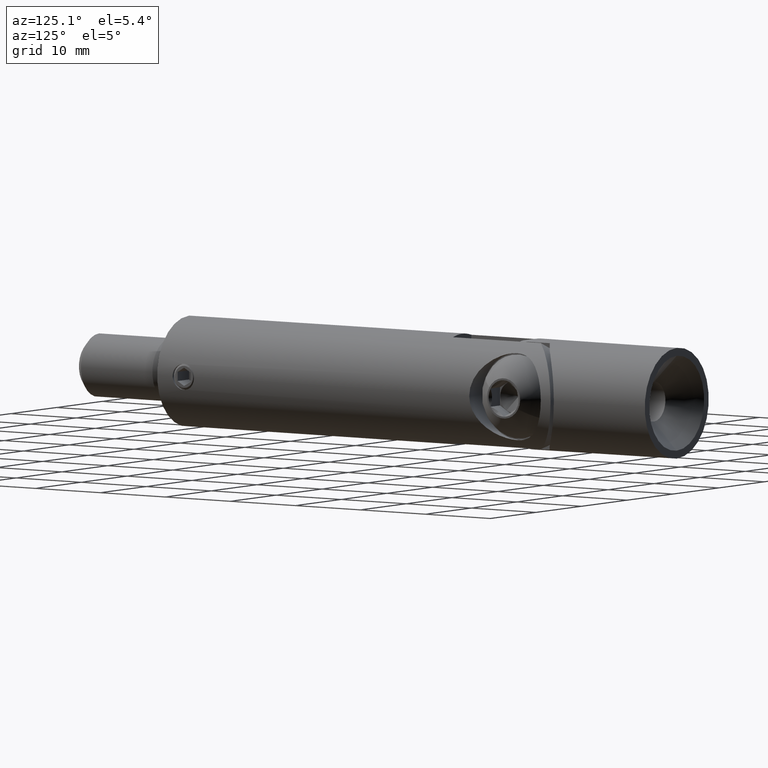
[diagram: clean part render]
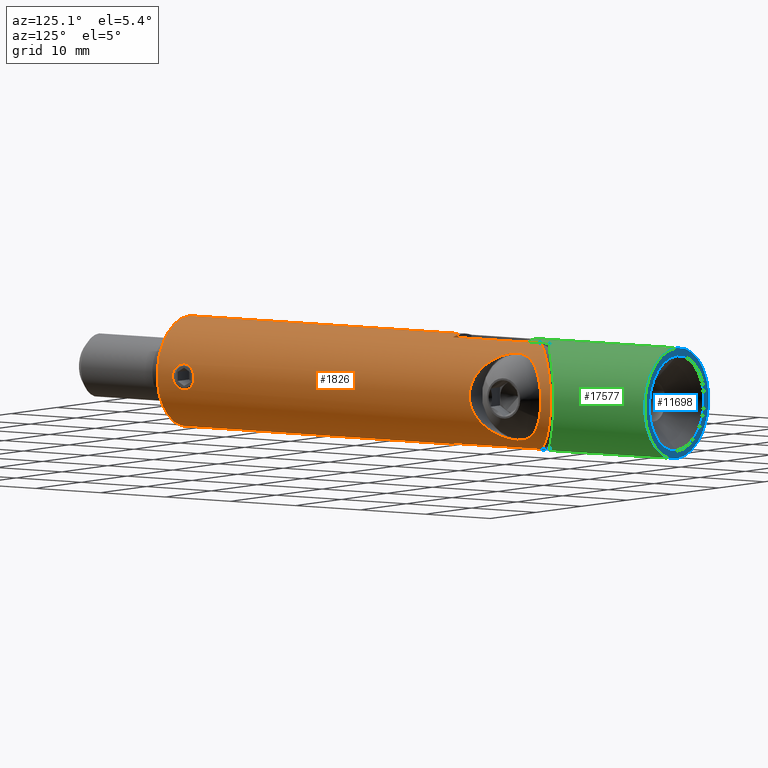
[diagram: same view with three faces highlighted in distinct colors, each labeled with its STEP entity id]
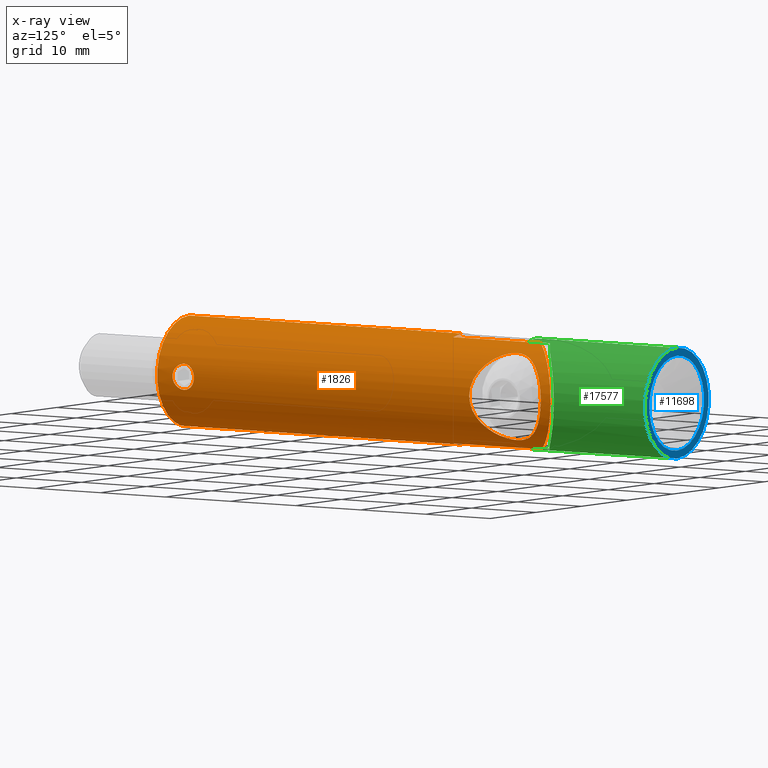
[diagram: x-ray of the same camera — body ghosted, the three highlighted faces saturated]
A machine part, auxiliary view with three faces highlighted in distinct colors.
The next image is the same camera in x-ray (body ghosted, the three faces saturated) — at least one of them is partly hidden behind the body in this view.
Their STEP definitions:

[orange] entity #1826 — the highlighted cylindrical surface (partial cylindrical patch) has radius 7 mm, axis along (-0, -1, -0).
#7 = AXIS2_PLACEMENT_3D ( 'NONE', #11309, #6150, #3352 ) ;
#18 = CARTESIAN_POINT ( 'NONE',  ( 10.18181818181817300, 63.68181818181817300, 4.268857047954133700 ) ) ;
#187 = DIRECTION ( 'NONE',  ( -0.0000000000000000000, -1.000000000000000000, -0.0000000000000000000 ) ) ;
#221 = CARTESIAN_POINT ( 'NONE',  ( 4.564636563695207100, 52.01323757000891100, 5.308317265926602200 ) ) ;
#302 = CARTESIAN_POINT ( 'NONE',  ( 6.876271399908920200, 5.006718435620928000, -1.311723865839887100 ) ) ;
#347 = CARTESIAN_POINT ( 'NONE',  ( 4.981418642730962400, 51.02052013683179900, -4.921893279491678500 ) ) ;
#415 = CARTESIAN_POINT ( 'NONE',  ( 6.118800279731655900, 49.17465190330179300, 3.415223899190800600 ) ) ;
#419 = CARTESIAN_POINT ( 'NONE',  ( 4.330127018922195400, 53.50000000000000000, -5.499999999999998200 ) ) ;
#427 = EDGE_CURVE ( 'NONE', #4382, #3183, #1918, .T. ) ;
#468 = CARTESIAN_POINT ( 'NONE',  ( 5.142119631477074300, 50.71686793326573900, -4.756356380513759400 ) ) ;
#533 = CARTESIAN_POINT ( 'NONE',  ( 6.542824856651344100, 48.59413685171208600, -2.513412350006165100 ) ) ;
#550 = CARTESIAN_POINT ( 'NONE',  ( 0.0000000000000000000, 0.0000000000000000000, -6.999999999999990200 ) ) ;
#591 = CARTESIAN_POINT ( 'NONE',  ( 4.343239327089206000, 53.11481009218788800, -5.489741830845622900 ) ) ;
#619 = CARTESIAN_POINT ( 'NONE',  ( 6.802756794123983900, 4.000000000000000000, 1.649999999999999000 ) ) ;
#658 = CARTESIAN_POINT ( 'NONE',  ( 6.537336558496925900, 58.39797312861956900, 2.508375037338220100 ) ) ;
#675 = CARTESIAN_POINT ( 'NONE',  ( 6.841267040103099700, 3.268413706700694600, 1.482851335314281100 ) ) ;
#780 = CARTESIAN_POINT ( 'NONE',  ( 4.343124385056432500, 53.88373190121762900, 5.489831873693367100 ) ) ;
#896 = VERTEX_POINT ( 'NONE', #9023 ) ;
#933 = CARTESIAN_POINT ( 'NONE',  ( 6.850682986879225400, 3.167283776696237400, -1.440594414308846900 ) ) ;
#983 = DIRECTION ( 'NONE',  ( -0.0000000000000000000, 1.000000000000000000, -0.0000000000000000000 ) ) ;
#1234 = CARTESIAN_POINT ( 'NONE',  ( 2.000000000000000900, 55.50000000000001400, 6.708203932499365000 ) ) ;
#1516 = CIRCLE ( 'NONE', #10191, 7.000000000000000000 ) ;
#1621 = CARTESIAN_POINT ( 'NONE',  ( 6.987640299487805100, 5.596884732902058300, 0.4291110676307161600 ) ) ;
#1682 = CARTESIAN_POINT ( 'NONE',  ( 6.805405047654836000, 4.217457718633582400, 1.639188448635536100 ) ) ;
#1704 = VERTEX_POINT ( 'NONE', #13443 ) ;
#1718 = CARTESIAN_POINT ( 'NONE',  ( 4.698041462989342800, 51.67038258904467800, -5.189910143153373000 ) ) ;
#1737 = CARTESIAN_POINT ( 'NONE',  ( 2.000000000000015500, 0.0000000000000000000, 6.708203932499365000 ) ) ;
#1798 = CARTESIAN_POINT ( 'NONE',  ( 6.815497306745561100, 4.429829658124429400, 1.596706953241620500 ) ) ;
#1826 = ADVANCED_FACE ( 'NONE', ( #11631, #2708, #13779 ), #13361, .T. ) ;
#1855 = CARTESIAN_POINT ( 'NONE',  ( 5.141011918187207800, 56.28095319619828300, -4.757435948329096200 ) ) ;
#1863 = CARTESIAN_POINT ( 'NONE',  ( 6.852344388496462100, 4.827645613757879600, -1.431469261584169100 ) ) ;
#1875 = AXIS2_PLACEMENT_3D ( 'NONE', #8445, #187, #3050 ) ;
#1907 = CARTESIAN_POINT ( 'NONE',  ( 4.519484047027379600, 52.19372721919619800, -5.345817098434363100 ) ) ;
#1918 = LINE ( 'NONE', #2012, #17281 ) ;
#1965 = CARTESIAN_POINT ( 'NONE',  ( 4.392494118280227500, 52.73931084414697100, -5.450411786515233300 ) ) ;
#1990 = CARTESIAN_POINT ( 'NONE',  ( 6.962150194191759000, 2.518213385095678300, 0.7338959035406256200 ) ) ;
#2012 = CARTESIAN_POINT ( 'NONE',  ( 2.000000000000015500, 0.0000000000000000000, -6.708203932499365000 ) ) ;
#2133 = DIRECTION ( 'NONE',  ( -0.0000000000000000000, -1.000000000000000000, -0.0000000000000000000 ) ) ;
#2225 = CARTESIAN_POINT ( 'NONE',  ( 6.802756794123984800, 3.890593403677181900, -1.649999999999999000 ) ) ;
#2356 = CARTESIAN_POINT ( 'NONE',  ( 6.987744406976830200, 2.402661367526322400, -0.4273928636816797200 ) ) ;
#2509 = VECTOR ( 'NONE', #12768, 1000.000000000000000 ) ;
#2687 = VERTEX_POINT ( 'NONE', #8346 ) ;
#2708 = FACE_BOUND ( 'NONE', #11019, .T. ) ;
#2866 = CARTESIAN_POINT ( 'NONE',  ( 8.572527594031473200E-016, 42.00000000000000000, 7.000000000000000000 ) ) ;
#2881 = VERTEX_POINT ( 'NONE', #12118 ) ;
#2922 = LINE ( 'NONE', #7304, #2509 ) ;
#2986 = CARTESIAN_POINT ( 'NONE',  ( 6.989344852189536700, 5.606209315279931700, -0.4344579339126458700 ) ) ;
#3050 = DIRECTION ( 'NONE',  ( 0.0000000000000000000, 0.0000000000000000000, -1.000000000000000000 ) ) ;
#3095 = CARTESIAN_POINT ( 'NONE',  ( 5.140929530618918400, 50.71925362934015900, 4.757480964554998700 ) ) ;
#3183 = VERTEX_POINT ( 'NONE', #16457 ) ;
#3215 = CARTESIAN_POINT ( 'NONE',  ( 6.758679285805232700, 48.30973647135601800, 1.856318990163557100 ) ) ;
#3225 = CARTESIAN_POINT ( 'NONE',  ( 6.876854958624238500, 58.84244529080081100, -1.320316435885758900 ) ) ;
#3275 = CARTESIAN_POINT ( 'NONE',  ( 4.330127018922195400, 53.50000000000000000, -5.499999999999998200 ) ) ;
#3283 = CARTESIAN_POINT ( 'NONE',  ( 6.962684004290618000, 58.95244074703001000, 0.7460508896046672600 ) ) ;
#3352 = DIRECTION ( 'NONE',  ( 0.0000000000000000000, 0.0000000000000000000, -1.000000000000000000 ) ) ;
#3407 = CARTESIAN_POINT ( 'NONE',  ( 5.142769192629566900, 56.28424948931279200, 4.755596340490513700 ) ) ;
#3425 = DIRECTION ( 'NONE',  ( 0.0000000000000000000, 0.0000000000000000000, -1.000000000000000000 ) ) ;
#3481 = CARTESIAN_POINT ( 'NONE',  ( 6.852391282326573600, 3.171960051553060800, 1.431248323626336200 ) ) ;
#3603 = ORIENTED_EDGE ( 'NONE', *, *, #16921, .F. ) ;
#3660 = B_SPLINE_CURVE_WITH_KNOTS ( 'NONE', 3,
 ( #619, #8952, #14390, #675, #3481, #6096, #15777, #7484, #17153, #8889, #1990, #17524, #7848, #9197, #5004, #2356, #14812, #10700, #13378, #3727, #933, #9258, #16321, #17706, #2225, #12191 ),
 .UNSPECIFIED., .F., .F.,
 ( 4, 2, 2, 2, 2, 2, 2, 2, 2, 2, 2, 2, 4 ),
 ( 0.005176886689741951400, 0.005823823536783965000, 0.006147291960304972700, 0.006470760383825980400, 0.006794228807346988100, 0.007117697230867995800, 0.007764634077910009500, 0.008088102501431018000, 0.008411570924952024900, 0.009058507771994038500, 0.009705444619036055600, 0.01002891304255706200, 0.01035238146607806900 ),
 .UNSPECIFIED. ) ;
#3727 = CARTESIAN_POINT ( 'NONE',  ( 6.876582889404570400, 2.984048697640952200, -1.317661791604446200 ) ) ;
#3741 = EDGE_CURVE ( 'NONE', #3183, #10319, #9549, .T. ) ;
#4382 = VERTEX_POINT ( 'NONE', #7752 ) ;
#4507 = CARTESIAN_POINT ( 'NONE',  ( 6.962792258086790500, 48.04742099311989300, -0.7452126322119035900 ) ) ;
#4526 = CARTESIAN_POINT ( 'NONE',  ( 6.876317534601179600, 5.007003973246006500, 1.311474037834923400 ) ) ;
#4587 = CARTESIAN_POINT ( 'NONE',  ( 6.927901957111284800, 5.319501220172840700, 1.014025552795952300 ) ) ;
#4683 = CARTESIAN_POINT ( 'NONE',  ( 5.965203083675139500, 49.39307486869241600, -3.674339829185508900 ) ) ;
#4692 = CARTESIAN_POINT ( 'NONE',  ( 5.469042501406028700, 56.84874947087537600, -4.376388289812887900 ) ) ;
#4870 = EDGE_CURVE ( 'NONE', #17653, #10899, #13682, .T. ) ;
#5004 = CARTESIAN_POINT ( 'NONE',  ( 6.997481569094726500, 2.360589398784641400, -0.2156113339822405600 ) ) ;
#5049 = CARTESIAN_POINT ( 'NONE',  ( 4.330127018922191000, 53.69125714729352700, 5.500000000000001800 ) ) ;
#5562 = LINE ( 'NONE', #7286, #12721 ) ;
#5710 = CARTESIAN_POINT ( 'NONE',  ( 4.330127018922306400, 53.49999999999988600, 5.500000000000002700 ) ) ;
#5754 = LINE ( 'NONE', #1737, #17220 ) ;
#5791 = CARTESIAN_POINT ( 'NONE',  ( 6.889101569378518700, 5.089912803340894200, 1.243502273441356100 ) ) ;
#5850 = CARTESIAN_POINT ( 'NONE',  ( 6.997434424159480100, 5.639210912470325400, 0.2171744528646556400 ) ) ;
#5887 = CARTESIAN_POINT ( 'NONE',  ( 4.574836818815185800, 52.01506289652022000, -5.298832792529525500 ) ) ;
#5952 = DIRECTION ( 'NONE',  ( -0.0000000000000000000, -1.000000000000000000, -0.0000000000000000000 ) ) ;
#5960 = CARTESIAN_POINT ( 'NONE',  ( 5.635442459809194600, 57.11127971664019800, -4.162378433175481600 ) ) ;
#5967 = CARTESIAN_POINT ( 'NONE',  ( 6.927758365672918500, 5.318582777858759800, -1.014801964244753400 ) ) ;
#6021 = CARTESIAN_POINT ( 'NONE',  ( 6.598055118728648700, 58.47860885108372000, 2.344532291128746100 ) ) ;
#6083 = CARTESIAN_POINT ( 'NONE',  ( 4.980657885628821700, 55.97798577821352200, 4.922663588529412800 ) ) ;
#6096 = CARTESIAN_POINT ( 'NONE',  ( 6.876345659478968000, 2.992769391472811500, 1.311338408403091900 ) ) ;
#6143 = CARTESIAN_POINT ( 'NONE',  ( 4.381899820940813800, 54.25820959508826700, -5.460128169591876600 ) ) ;
#6150 = DIRECTION ( 'NONE',  ( -0.0000000000000000000, 1.000000000000000000, -0.0000000000000000000 ) ) ;
#6195 = CARTESIAN_POINT ( 'NONE',  ( 5.959526870003809800, 57.59866929481923800, -3.683428487766160900 ) ) ;
#7104 = CARTESIAN_POINT ( 'NONE',  ( 4.381711536334037800, 52.74240409699324800, 5.460287828193204800 ) ) ;
#7283 = CARTESIAN_POINT ( 'NONE',  ( 4.330127018922196300, 53.30757085261022600, -5.499999999999996400 ) ) ;
#7286 = CARTESIAN_POINT ( 'NONE',  ( 8.572527594031473200E-016, 0.0000000000000000000, 7.000000000000000000 ) ) ;
#7304 = CARTESIAN_POINT ( 'NONE',  ( 0.0000000000000000000, 0.0000000000000000000, -7.000000000000000000 ) ) ;
#7359 = CARTESIAN_POINT ( 'NONE',  ( 6.980466204550488400, 5.565583584430961600, 0.5321667002283918500 ) ) ;
#7397 = CARTESIAN_POINT ( 'NONE',  ( 6.763366467986198700, 48.30364915491699700, -1.839204383883986400 ) ) ;
#7405 = CARTESIAN_POINT ( 'NONE',  ( 6.118761982340818600, 57.82530646751458600, -3.415390690307233100 ) ) ;
#7466 = CARTESIAN_POINT ( 'NONE',  ( 5.639211792954381700, 57.11718560579952000, 4.157399225194837700 ) ) ;
#7484 = CARTESIAN_POINT ( 'NONE',  ( 6.914837155602877600, 2.757784916843634800, 1.091316214963677300 ) ) ;
#7523 = CARTESIAN_POINT ( 'NONE',  ( 6.846321943609229500, 48.19674714074443500, 1.505326204670953900 ) ) ;
#7524 = EDGE_CURVE ( 'NONE', #896, #4382, #17199, .T. ) ;
#7530 = CARTESIAN_POINT ( 'NONE',  ( 7.000211044381926800, 59.00026860204964400, 0.1814224726587949900 ) ) ;
#7549 = DIRECTION ( 'NONE',  ( -0.0000000000000000000, -1.000000000000000000, -0.0000000000000000000 ) ) ;
#7588 = CARTESIAN_POINT ( 'NONE',  ( 5.964810482598363000, 57.60637140969041800, 3.675012091154409500 ) ) ;
#7717 = CARTESIAN_POINT ( 'NONE',  ( 4.428083658012213600, 54.44272206825868900, 5.421769410065435200 ) ) ;
#7752 = CARTESIAN_POINT ( 'NONE',  ( 2.000000000000000900, 55.50000000000001400, -6.708203932499365000 ) ) ;
#7848 = CARTESIAN_POINT ( 'NONE',  ( 6.999981427835531500, 2.350078791005636000, 0.2183066005469422000 ) ) ;
#7997 = ORIENTED_EDGE ( 'NONE', *, *, #4870, .F. ) ;
#8346 = CARTESIAN_POINT ( 'NONE',  ( 8.572527594031461400E-016, 0.0000000000000000000, 6.999999999999990200 ) ) ;
#8444 = CARTESIAN_POINT ( 'NONE',  ( 6.802756794123983900, 4.109436020467696500, -1.649999999999998600 ) ) ;
#8445 = CARTESIAN_POINT ( 'NONE',  ( 0.0000000000000000000, 0.0000000000000000000, 0.0000000000000000000 ) ) ;
#8634 = CARTESIAN_POINT ( 'NONE',  ( 6.802756794123982200, 4.107906639725028300, 1.649999999999998800 ) ) ;
#8677 = CARTESIAN_POINT ( 'NONE',  ( 5.959888016800598500, 49.40076994837417600, 3.682938467230362900 ) ) ;
#8692 = CARTESIAN_POINT ( 'NONE',  ( 6.841302398867267000, 4.731955566503201800, 1.482691859907623500 ) ) ;
#8746 = CARTESIAN_POINT ( 'NONE',  ( 6.536999315311256900, 58.39809581122224100, -2.528186749634238500 ) ) ;
#8755 = CARTESIAN_POINT ( 'NONE',  ( 6.815413473074264600, 4.428380775582283500, -1.597062494607958600 ) ) ;
#8809 = CARTESIAN_POINT ( 'NONE',  ( 5.472077794092315100, 56.85374501634769500, 4.372657788776559000 ) ) ;
#8872 = EDGE_LOOP ( 'NONE', ( #12629, #7997 ) ) ;
#8876 = CARTESIAN_POINT ( 'NONE',  ( 4.574617726922028300, 54.98421044356374700, 5.299017119938606700 ) ) ;
#8889 = CARTESIAN_POINT ( 'NONE',  ( 6.951381027760717800, 2.569049517665056300, 0.8284870251625875400 ) ) ;
#8909 = ORIENTED_EDGE ( 'NONE', *, *, #3741, .F. ) ;
#8935 = CARTESIAN_POINT ( 'NONE',  ( 6.967224025703915300, 58.95843941775717000, -0.7715360179236543400 ) ) ;
#8952 = CARTESIAN_POINT ( 'NONE',  ( 6.802756794123984800, 3.784244746428203400, 1.649999999999999200 ) ) ;
#9023 = CARTESIAN_POINT ( 'NONE',  ( 2.000000000000000900, 55.50000000000001400, 6.708203932499365000 ) ) ;
#9197 = CARTESIAN_POINT ( 'NONE',  ( 7.000009247981115100, 2.349960766138304600, -0.1082588040302215600 ) ) ;
#9247 = CARTESIAN_POINT ( 'NONE',  ( 0.0000000000000000000, 42.00000000000000000, 0.0000000000000000000 ) ) ;
#9258 = CARTESIAN_POINT ( 'NONE',  ( 6.823044746341871300, 3.465019307785227800, -1.564561536894661000 ) ) ;
#9410 = ORIENTED_EDGE ( 'NONE', *, *, #17543, .F. ) ;
#9481 = VERTEX_POINT ( 'NONE', #11307 ) ;
#9549 = CIRCLE ( 'NONE', #9878, 7.000000000000000000 ) ;
#9573 = CARTESIAN_POINT ( 'NONE',  ( 4.330127018922195400, 53.50000000000000000, -5.499999999999998200 ) ) ;
#9609 = CARTESIAN_POINT ( 'NONE',  ( 10.18181818181817300, 63.68181818181817300, -4.268857047954133700 ) ) ;
#9764 = CARTESIAN_POINT ( 'NONE',  ( 6.802756794123982200, 4.000000000000000000, -1.649999999999998600 ) ) ;
#9878 = AXIS2_PLACEMENT_3D ( 'NONE', #9247, #983, #14801 ) ;
#9975 = CARTESIAN_POINT ( 'NONE',  ( 6.937002934152253000, 48.08035043643489800, 0.9552607372160938400 ) ) ;
#10039 = CARTESIAN_POINT ( 'NONE',  ( 5.634418784869821700, 49.89027745018502500, 4.163847485549226200 ) ) ;
#10051 = CARTESIAN_POINT ( 'NONE',  ( 6.407049158269247300, 58.22433135563785800, -2.837932847601929900 ) ) ;
#10120 = CARTESIAN_POINT ( 'NONE',  ( 6.762739449558572400, 58.69552729103082800, 1.841197217326563600 ) ) ;
#10125 = CARTESIAN_POINT ( 'NONE',  ( 6.953318440557151100, 5.441389689659185800, -0.8312988772853389100 ) ) ;
#10166 = CARTESIAN_POINT ( 'NONE',  ( 5.467921536950592000, 50.15312685131381400, 4.377740927995245300 ) ) ;
#10176 = CARTESIAN_POINT ( 'NONE',  ( 6.992752333776262000, 58.99078562300535100, 0.3701017048744608100 ) ) ;
#10191 = AXIS2_PLACEMENT_3D ( 'NONE', #15839, #7549, #3425 ) ;
#10230 = CARTESIAN_POINT ( 'NONE',  ( 6.124201327122397000, 49.16700978500747300, -3.405732803645709500 ) ) ;
#10282 = CIRCLE ( 'NONE', #7, 7.000000000000000000 ) ;
#10301 = CARTESIAN_POINT ( 'NONE',  ( 4.573796947574691400, 54.98163716731787800, -5.299720030575783400 ) ) ;
#10319 = VERTEX_POINT ( 'NONE', #13300 ) ;
#10600 = EDGE_LOOP ( 'NONE', ( #14432, #15292, #3603, #13950, #8909, #15245, #15488, #16075 ) ) ;
#10700 = CARTESIAN_POINT ( 'NONE',  ( 6.953330894584001800, 2.558539875664909600, -0.8313609373707684400 ) ) ;
#10899 = VERTEX_POINT ( 'NONE', #9573 ) ;
#11019 = EDGE_LOOP ( 'NONE', ( #9410, #14651 ) ) ;
#11307 = CARTESIAN_POINT ( 'NONE',  ( 6.802756794123982200, 4.000000000000000000, -1.649999999999998600 ) ) ;
#11309 = CARTESIAN_POINT ( 'NONE',  ( 0.0000000000000000000, 42.00000000000000000, 0.0000000000000000000 ) ) ;
#11312 = CARTESIAN_POINT ( 'NONE',  ( 6.852464869255958200, 4.828606631554865900, 1.430885112156660100 ) ) ;
#11486 = CARTESIAN_POINT ( 'NONE',  ( 4.765770817492353700, 51.50415590306033000, -5.128091243567287600 ) ) ;
#11505 = CARTESIAN_POINT ( 'NONE',  ( 6.889311268357991100, 5.091187836512602000, -1.242298272405677000 ) ) ;
#11556 = CARTESIAN_POINT ( 'NONE',  ( 6.839840961106306200, 58.79478193106691500, -1.499845889937603500 ) ) ;
#11564 = CARTESIAN_POINT ( 'NONE',  ( 7.000010220354675500, 5.650043359083760200, 0.1073881788798277300 ) ) ;
#11610 = CARTESIAN_POINT ( 'NONE',  ( 6.850351886073434000, 48.19155186534379700, -1.487261485796818100 ) ) ;
#11631 = FACE_BOUND ( 'NONE', #8872, .T. ) ;
#11748 = CARTESIAN_POINT ( 'NONE',  ( 6.123759610155000900, 57.83236171993800000, 3.406480096426387500 ) ) ;
#12118 = CARTESIAN_POINT ( 'NONE',  ( 6.802756794123983900, 4.000000000000000000, 1.649999999999999000 ) ) ;
#12191 = CARTESIAN_POINT ( 'NONE',  ( 6.802756794123982200, 4.000000000000000000, -1.649999999999998600 ) ) ;
#12315 = CARTESIAN_POINT ( 'NONE',  ( 2.000000000000000900, 55.50000000000001400, -6.708203932499365000 ) ) ;
#12561 = B_SPLINE_CURVE_WITH_KNOTS ( 'NONE', 3,
 ( #419, #14441, #6143, #13122, #10301, #14261, #14495, #15822, #1855, #4692, #5960, #6195, #7405, #10051, #8746, #15702, #15876, #11556, #3225, #8935, #15638, #7530, #10176, #3283, #14319, #17021, #10120, #6021, #658, #14368, #17079, #11748, #7588, #7466, #8809, #3407, #6083, #15760, #17138, #8876, #17444, #7717, #13421, #780, #5049, #14735 ),
 .UNSPECIFIED., .F., .F.,
 ( 4, 2, 2, 2, 2, 2, 2, 2, 2, 2, 2, 2, 2, 2, 2, 2, 2, 2, 2, 2, 2, 2, 4 ),
 ( 0.0000000000000000000, 0.001136524916589670100, 0.001704787374884505100, 0.002273049833179340300, 0.003409574749769009300, 0.004546099666358677900, 0.005682624582948349100, 0.006819149499538018600, 0.007387411957832852900, 0.007955674416127689000, 0.009092199332717362800, 0.009660461791012200600, 0.01022872424930703700, 0.01136524916589671200, 0.01193351162419155200, 0.01250177408248639100, 0.01363829899907608100, 0.01477482391566577200, 0.01591134883225546100, 0.01647961129055031500, 0.01704787374884516800, 0.01761613620714002100, 0.01818439866543487500 ),
 .UNSPECIFIED. ) ;
#12629 = ORIENTED_EDGE ( 'NONE', *, *, #13515, .F. ) ;
#12709 = CARTESIAN_POINT ( 'NONE',  ( 6.822860936699911800, 4.532702356042817000, 1.565363313303906700 ) ) ;
#12721 = VECTOR ( 'NONE', #5952, 1000.000000000000000 ) ;
#12768 = DIRECTION ( 'NONE',  ( -0.0000000000000000000, -1.000000000000000000, -0.0000000000000000000 ) ) ;
#12813 = CARTESIAN_POINT ( 'NONE',  ( 6.406229643317485200, 48.77679160556238700, 2.839664223447656800 ) ) ;
#12936 = CARTESIAN_POINT ( 'NONE',  ( 6.960496336383267900, 48.05035203094363500, 0.7665261965451994900 ) ) ;
#12983 = EDGE_CURVE ( 'NONE', #17506, #1704, #10282, .T. ) ;
#13057 = CARTESIAN_POINT ( 'NONE',  ( 6.536566839910174000, 48.60247043285983200, 2.529616537936404600 ) ) ;
#13122 = CARTESIAN_POINT ( 'NONE',  ( 4.518641674499007400, 54.80348821239390800, -5.346530541833998600 ) ) ;
#13300 = CARTESIAN_POINT ( 'NONE',  ( 0.0000000000000000000, 42.00000000000000000, -7.000000000000000000 ) ) ;
#13361 = CYLINDRICAL_SURFACE ( 'NONE', #1875, 7.000000000000000000 ) ;
#13378 = CARTESIAN_POINT ( 'NONE',  ( 6.927792830483805500, 2.681258813862188500, -1.014549816324029600 ) ) ;
#13421 = CARTESIAN_POINT ( 'NONE',  ( 4.392137359826588900, 54.25854553951938200, 5.450698380749659400 ) ) ;
#13443 = CARTESIAN_POINT ( 'NONE',  ( 2.000000000000003600, 42.00000000000000000, 6.708203932499365000 ) ) ;
#13505 = B_SPLINE_CURVE_WITH_KNOTS ( 'NONE', 3,
 ( #9764, #8444, #15709, #8755, #14084, #14268, #1863, #302, #11505, #5967, #10125, #2986, #14325, #11564, #5850, #1621, #7359, #15530, #4587, #5791, #4526, #11312, #8692, #12709, #1798, #1682, #8634, #15590 ),
 .UNSPECIFIED., .F., .F.,
 ( 4, 2, 2, 2, 2, 2, 2, 2, 2, 2, 2, 2, 2, 4 ),
 ( 0.0000000000000000000, 0.0003235554181088716900, 0.0006471108362177433800, 0.0009706662543266150200, 0.001294221672435486800, 0.001941332508653229800, 0.002588443344870972700, 0.002911998762979844900, 0.003235554181088716400, 0.003882665017306460100, 0.004206220435415332400, 0.004529775853524205900, 0.004853331271633078700, 0.005176886689741951400 ),
 .UNSPECIFIED. ) ;
#13515 = EDGE_CURVE ( 'NONE', #10899, #17653, #12561, .T. ) ;
#13682 = B_SPLINE_CURVE_WITH_KNOTS ( 'NONE', 3,
 ( #5710, #15380, #7104, #221, #15442, #17070, #3095, #10166, #10039, #8677, #415, #12813, #13057, #3215, #7523, #9975, #12936, #14362, #14253, #16951, #4507, #17191, #11610, #7397, #533, #15812, #10230, #4683, #14187, #14429, #468, #347, #11486, #1718, #5887, #1907, #15572, #1965, #591, #7283, #3275 ),
 .UNSPECIFIED., .F., .F.,
 ( 4, 2, 2, 2, 2, 2, 2, 2, 2, 1, 2, 2, 2, 2, 2, 2, 2, 2, 2, 2, 4 ),
 ( 0.01818439866543487500, 0.01932040318023528100, 0.02045640769503569200, 0.02159241220983609800, 0.02272841672463650800, 0.02386442123943691500, 0.02500042575423732500, 0.02613643026903773200, 0.02670443252643793500, 0.02727243478383813800, 0.02784043704123834500, 0.02840843929863854900, 0.02954444381343895900, 0.03068044832823937200, 0.03181645284303978600, 0.03295245735784019900, 0.03408846187264061300, 0.03465646413004080900, 0.03522446638744102000, 0.03579246864484123000, 0.03636047090224143300 ),
 .UNSPECIFIED. ) ;
#13779 = FACE_OUTER_BOUND ( 'NONE', #10600, .T. ) ;
#13950 = ORIENTED_EDGE ( 'NONE', *, *, #17597, .F. ) ;
#14084 = CARTESIAN_POINT ( 'NONE',  ( 6.822911991866243800, 4.533390877948555400, -1.565144815384449800 ) ) ;
#14143 = CARTESIAN_POINT ( 'NONE',  ( 4.330127018922306400, 53.49999999999988600, 5.500000000000002700 ) ) ;
#14187 = CARTESIAN_POINT ( 'NONE',  ( 5.640182641989923700, 49.88131979311753400, -4.156051103490176100 ) ) ;
#14253 = CARTESIAN_POINT ( 'NONE',  ( 7.007632536554764300, 47.99029591838347400, 0.009726656246731213800 ) ) ;
#14261 = CARTESIAN_POINT ( 'NONE',  ( 4.696027008214875000, 55.32436285859412100, -5.191722378772405800 ) ) ;
#14268 = CARTESIAN_POINT ( 'NONE',  ( 6.841414081770065700, 4.733024159334667600, -1.482180725699554900 ) ) ;
#14319 = CARTESIAN_POINT ( 'NONE',  ( 6.939886827421139200, 58.92333939778236400, 0.9344020694859693800 ) ) ;
#14325 = CARTESIAN_POINT ( 'NONE',  ( 6.999979464770047100, 5.649912880835959300, -0.2167688098637619300 ) ) ;
#14362 = CARTESIAN_POINT ( 'NONE',  ( 6.991820335387573400, 48.01040025683344200, 0.3879691436902549300 ) ) ;
#14368 = CARTESIAN_POINT ( 'NONE',  ( 6.408306307048524000, 58.22437945285693700, 2.821759182149329100 ) ) ;
#14390 = CARTESIAN_POINT ( 'NONE',  ( 6.813688159146179800, 3.566431675213221000, 1.606482136996441300 ) ) ;
#14429 = CARTESIAN_POINT ( 'NONE',  ( 5.472837526310864400, 50.14494703680268400, -4.371769634081768900 ) ) ;
#14432 = ORIENTED_EDGE ( 'NONE', *, *, #12983, .F. ) ;
#14441 = CARTESIAN_POINT ( 'NONE',  ( 4.330127018922196300, 53.88503459772781700, -5.499999999999999100 ) ) ;
#14495 = CARTESIAN_POINT ( 'NONE',  ( 4.763418735986267200, 55.49023159844370700, -5.130272217416193200 ) ) ;
#14651 = ORIENTED_EDGE ( 'NONE', *, *, #14718, .F. ) ;
#14718 = EDGE_CURVE ( 'NONE', #2881, #9481, #3660, .T. ) ;
#14735 = CARTESIAN_POINT ( 'NONE',  ( 4.330127018922306400, 53.49999999999988600, 5.500000000000002700 ) ) ;
#14801 = DIRECTION ( 'NONE',  ( 3.552713678800500900E-015, 0.0000000000000000000, -1.000000000000000000 ) ) ;
#14812 = CARTESIAN_POINT ( 'NONE',  ( 6.980417650261999000, 2.434639095222033600, -0.5326934506368672400 ) ) ;
#15245 = ORIENTED_EDGE ( 'NONE', *, *, #427, .F. ) ;
#15292 = ORIENTED_EDGE ( 'NONE', *, *, #15931, .T. ) ;
#15380 = CARTESIAN_POINT ( 'NONE',  ( 4.330127018922207000, 53.11766085434283000, 5.499999999999988500 ) ) ;
#15442 = CARTESIAN_POINT ( 'NONE',  ( 4.690822759035756700, 51.67303206798794700, 5.199596003857633000 ) ) ;
#15488 = ORIENTED_EDGE ( 'NONE', *, *, #7524, .F. ) ;
#15530 = CARTESIAN_POINT ( 'NONE',  ( 6.953219085542671400, 5.440947521399595900, 0.8325765233653154000 ) ) ;
#15572 = CARTESIAN_POINT ( 'NONE',  ( 4.428529916354913900, 52.55528324531405100, -5.421403810932894800 ) ) ;
#15590 = CARTESIAN_POINT ( 'NONE',  ( 6.802756794123983900, 4.000000000000000000, 1.649999999999999000 ) ) ;
#15638 = CARTESIAN_POINT ( 'NONE',  ( 6.999564306604391100, 58.99944548091134100, -0.3867488016776251500 ) ) ;
#15702 = CARTESIAN_POINT ( 'NONE',  ( 6.702587673185211900, 58.61633923314489900, -2.026410756884485100 ) ) ;
#15709 = CARTESIAN_POINT ( 'NONE',  ( 6.805396658793258200, 4.216963046255990800, -1.639221076344247600 ) ) ;
#15760 = CARTESIAN_POINT ( 'NONE',  ( 4.764965220792312600, 55.49393046297966900, 5.128839916542249400 ) ) ;
#15777 = CARTESIAN_POINT ( 'NONE',  ( 6.889123412701857200, 2.909978523261135500, 1.243351347814384500 ) ) ;
#15812 = CARTESIAN_POINT ( 'NONE',  ( 6.412469452071438700, 48.76832727443636600, -2.825790747951238700 ) ) ;
#15822 = CARTESIAN_POINT ( 'NONE',  ( 4.978728017547205700, 55.97410341681685300, -4.924598627689406700 ) ) ;
#15839 = CARTESIAN_POINT ( 'NONE',  ( 0.0000000000000000000, 0.0000000000000000000, 0.0000000000000000000 ) ) ;
#15876 = CARTESIAN_POINT ( 'NONE',  ( 6.752896078488857900, 58.68197807513649200, -1.852392134489939000 ) ) ;
#15931 = EDGE_CURVE ( 'NONE', #17506, #2687, #5562, .T. ) ;
#16075 = ORIENTED_EDGE ( 'NONE', *, *, #17621, .F. ) ;
#16321 = CARTESIAN_POINT ( 'NONE',  ( 6.815505056658118100, 3.570004591680693300, -1.596674354033438900 ) ) ;
#16457 = CARTESIAN_POINT ( 'NONE',  ( 2.000000000000003600, 42.00000000000000000, -6.708203932499368500 ) ) ;
#16921 = EDGE_CURVE ( 'NONE', #17735, #2687, #1516, .T. ) ;
#16951 = CARTESIAN_POINT ( 'NONE',  ( 6.992886995373566200, 48.00904285874849400, -0.3678985816999213500 ) ) ;
#16968 = DIRECTION ( 'NONE',  ( 0.0000000000000000000, 1.000000000000000000, 0.0000000000000000000 ) ) ;
#17021 = CARTESIAN_POINT ( 'NONE',  ( 6.849957484525694100, 58.80794138290069400, 1.489505985111249300 ) ) ;
#17070 = CARTESIAN_POINT ( 'NONE',  ( 4.978697894018924200, 51.02584834987403200, 4.924650651580439100 ) ) ;
#17079 = CARTESIAN_POINT ( 'NONE',  ( 6.339715494630915800, 58.13106079966760800, 2.972228465262287700 ) ) ;
#17138 = CARTESIAN_POINT ( 'NONE',  ( 4.697365174980628700, 55.32783830806644000, 5.190517334307910100 ) ) ;
#17153 = CARTESIAN_POINT ( 'NONE',  ( 6.927800437906174800, 2.688382678813686400, 1.006811817829629700 ) ) ;
#17191 = CARTESIAN_POINT ( 'NONE',  ( 6.939826420599049900, 48.07673844380792600, -0.9346797176019571200 ) ) ;
#17199 =( BOUNDED_CURVE ( )  B_SPLINE_CURVE ( 3, ( #1234, #18, #9609, #12315 ),
 .UNSPECIFIED., .F., .F. ) 
 B_SPLINE_CURVE_WITH_KNOTS ( ( 4, 4 ),
 ( 1.860548028230945400, 4.422637278948641000 ),
 .UNSPECIFIED. ) 
 CURVE ( )  GEOMETRIC_REPRESENTATION_ITEM ( )  RATIONAL_B_SPLINE_CURVE ( ( 1.000000000000000000, 0.5238095238095246100, 0.5238095238095246100, 1.000000000000000000 ) ) 
 REPRESENTATION_ITEM ( '' )  );
#17220 = VECTOR ( 'NONE', #16968, 1000.000000000000000 ) ;
#17281 = VECTOR ( 'NONE', #2133, 1000.000000000000000 ) ;
#17444 = CARTESIAN_POINT ( 'NONE',  ( 4.519197805659930900, 54.80535390691898100, 5.346060195283493000 ) ) ;
#17506 = VERTEX_POINT ( 'NONE', #2866 ) ;
#17524 = CARTESIAN_POINT ( 'NONE',  ( 6.989492729003491600, 2.393098138872895600, 0.4330652215076825100 ) ) ;
#17543 = EDGE_CURVE ( 'NONE', #9481, #2881, #13505, .T. ) ;
#17597 = EDGE_CURVE ( 'NONE', #10319, #17735, #2922, .T. ) ;
#17621 = EDGE_CURVE ( 'NONE', #1704, #896, #5754, .T. ) ;
#17653 = VERTEX_POINT ( 'NONE', #14143 ) ;
#17706 = CARTESIAN_POINT ( 'NONE',  ( 6.805396524259201400, 3.782724308210680500, -1.639224303675753900 ) ) ;
#17735 = VERTEX_POINT ( 'NONE', #550 ) ;

[blue] entity #11698 — the highlighted planar face has unit normal (0, 1, 0).
#692 = AXIS2_PLACEMENT_3D ( 'NONE', #12214, #9399, #3761 ) ;
#1056 = AXIS2_PLACEMENT_3D ( 'NONE', #5274, #14964, #16409 ) ;
#1906 = FACE_OUTER_BOUND ( 'NONE', #16863, .T. ) ;
#2264 = CARTESIAN_POINT ( 'NONE',  ( 0.0000000000000000000, 28.49999999999999600, -7.000000000000000000 ) ) ;
#2397 = CIRCLE ( 'NONE', #9668, 7.000000000000000000 ) ;
#2784 = CARTESIAN_POINT ( 'NONE',  ( 7.347880794884119700E-016, 28.49999999999999600, -6.000000000000000000 ) ) ;
#3066 = ORIENTED_EDGE ( 'NONE', *, *, #11677, .F. ) ;
#3261 = DIRECTION ( 'NONE',  ( 0.0000000000000000000, 0.0000000000000000000, 1.000000000000000000 ) ) ;
#3761 = DIRECTION ( 'NONE',  ( 0.0000000000000000000, 0.0000000000000000000, 1.000000000000000000 ) ) ;
#4119 = VERTEX_POINT ( 'NONE', #17847 ) ;
#4726 = AXIS2_PLACEMENT_3D ( 'NONE', #17235, #9097, #17297 ) ;
#5088 = EDGE_LOOP ( 'NONE', ( #6250, #3066 ) ) ;
#5274 = CARTESIAN_POINT ( 'NONE',  ( 0.0000000000000000000, 28.49999999999999600, 0.0000000000000000000 ) ) ;
#5317 = CARTESIAN_POINT ( 'NONE',  ( 0.0000000000000000000, 28.49999999999999600, 0.0000000000000000000 ) ) ;
#6023 = AXIS2_PLACEMENT_3D ( 'NONE', #7382, #10091, #3261 ) ;
#6250 = ORIENTED_EDGE ( 'NONE', *, *, #11086, .F. ) ;
#6615 = CIRCLE ( 'NONE', #6023, 7.000000000000000000 ) ;
#6672 = CIRCLE ( 'NONE', #4726, 6.000000000000000000 ) ;
#7382 = CARTESIAN_POINT ( 'NONE',  ( 0.0000000000000000000, 28.49999999999999600, 0.0000000000000000000 ) ) ;
#7474 = EDGE_CURVE ( 'NONE', #12317, #4119, #2397, .T. ) ;
#7666 = CARTESIAN_POINT ( 'NONE',  ( 0.0000000000000000000, 28.49999999999999600, 6.000000000000000000 ) ) ;
#9097 = DIRECTION ( 'NONE',  ( -0.0000000000000000000, 1.000000000000000000, -0.0000000000000000000 ) ) ;
#9399 = DIRECTION ( 'NONE',  ( -0.0000000000000000000, 1.000000000000000000, -0.0000000000000000000 ) ) ;
#9668 = AXIS2_PLACEMENT_3D ( 'NONE', #5317, #13800, #10888 ) ;
#10027 = ORIENTED_EDGE ( 'NONE', *, *, #7474, .T. ) ;
#10091 = DIRECTION ( 'NONE',  ( 0.0000000000000000000, 1.000000000000000000, 0.0000000000000000000 ) ) ;
#10110 = CIRCLE ( 'NONE', #692, 6.000000000000000000 ) ;
#10149 = ORIENTED_EDGE ( 'NONE', *, *, #14431, .T. ) ;
#10888 = DIRECTION ( 'NONE',  ( 0.0000000000000000000, 0.0000000000000000000, 1.000000000000000000 ) ) ;
#11086 = EDGE_CURVE ( 'NONE', #15675, #16337, #6672, .T. ) ;
#11677 = EDGE_CURVE ( 'NONE', #16337, #15675, #10110, .T. ) ;
#11698 = ADVANCED_FACE ( 'NONE', ( #16187, #1906 ), #13408, .T. ) ;
#12214 = CARTESIAN_POINT ( 'NONE',  ( 0.0000000000000000000, 28.49999999999999600, 0.0000000000000000000 ) ) ;
#12317 = VERTEX_POINT ( 'NONE', #2264 ) ;
#13408 = PLANE ( 'NONE',  #1056 ) ;
#13800 = DIRECTION ( 'NONE',  ( 0.0000000000000000000, 1.000000000000000000, 0.0000000000000000000 ) ) ;
#14431 = EDGE_CURVE ( 'NONE', #4119, #12317, #6615, .T. ) ;
#14964 = DIRECTION ( 'NONE',  ( 0.0000000000000000000, 1.000000000000000000, 0.0000000000000000000 ) ) ;
#15675 = VERTEX_POINT ( 'NONE', #7666 ) ;
#16187 = FACE_BOUND ( 'NONE', #5088, .T. ) ;
#16337 = VERTEX_POINT ( 'NONE', #2784 ) ;
#16409 = DIRECTION ( 'NONE',  ( 0.0000000000000000000, -0.0000000000000000000, 1.000000000000000000 ) ) ;
#16863 = EDGE_LOOP ( 'NONE', ( #10027, #10149 ) ) ;
#17235 = CARTESIAN_POINT ( 'NONE',  ( 0.0000000000000000000, 28.49999999999999600, 0.0000000000000000000 ) ) ;
#17297 = DIRECTION ( 'NONE',  ( 0.0000000000000000000, 0.0000000000000000000, 1.000000000000000000 ) ) ;
#17847 = CARTESIAN_POINT ( 'NONE',  ( 8.572527594031471200E-016, 28.49999999999999600, 7.000000000000000000 ) ) ;

[green] entity #17577 — the highlighted cylindrical surface (partial cylindrical patch) has radius 7 mm, axis along (-0, -1, -0).
#461 = CARTESIAN_POINT ( 'NONE',  ( 8.572527594031471200E-016, 28.49999999999999600, 7.000000000000000000 ) ) ;
#599 = CARTESIAN_POINT ( 'NONE',  ( 6.131654851988759700, 13.69668656183775300, 3.382284619595412200 ) ) ;
#622 = VERTEX_POINT ( 'NONE', #16859 ) ;
#655 = CARTESIAN_POINT ( 'NONE',  ( 5.525644809559128800, 13.14654712759854300, -4.301290638713528100 ) ) ;
#711 = CARTESIAN_POINT ( 'NONE',  ( 4.108124291350669000, 11.90897019837056600, -5.678559880547874500 ) ) ;
#776 = CARTESIAN_POINT ( 'NONE',  ( 6.926400498339864600, 14.43134183356610100, -1.033850297823965200 ) ) ;
#1161 = CARTESIAN_POINT ( 'NONE',  ( 1.869999999999999200, 10.27824648249639400, 6.745598564990358700 ) ) ;
#1378 = CARTESIAN_POINT ( 'NONE',  ( 0.0000000000000000000, 7.000000000000006200, 0.0000000000000000000 ) ) ;
#1420 = AXIS2_PLACEMENT_3D ( 'NONE', #14207, #10059, #5904 ) ;
#1445 = VECTOR ( 'NONE', #15742, 1000.000000000000000 ) ;
#1914 = CARTESIAN_POINT ( 'NONE',  ( 6.842019866135716600, 14.35275706316291500, 1.493728750700350900 ) ) ;
#1971 = CARTESIAN_POINT ( 'NONE',  ( 6.852195092240845200, 14.36222759537059800, -1.446130256783217900 ) ) ;
#1999 = DIRECTION ( 'NONE',  ( -0.0000000000000000000, -1.000000000000000000, -0.0000000000000000000 ) ) ;
#2087 = CARTESIAN_POINT ( 'NONE',  ( 3.214992365047502100, 11.18785072850656300, -6.228062241702697400 ) ) ;
#2264 = CARTESIAN_POINT ( 'NONE',  ( 0.0000000000000000000, 28.49999999999999600, -7.000000000000000000 ) ) ;
#2267 = EDGE_LOOP ( 'NONE', ( #3410, #12163, #12184, #4321, #15924, #5502, #12150, #6676 ) ) ;
#2273 = EDGE_CURVE ( 'NONE', #622, #5673, #10957, .T. ) ;
#2395 = CARTESIAN_POINT ( 'NONE',  ( 2.231929679439916400, 10.48470090993690100, -6.645265215172407200 ) ) ;
#3261 = DIRECTION ( 'NONE',  ( 0.0000000000000000000, 0.0000000000000000000, 1.000000000000000000 ) ) ;
#3280 = CARTESIAN_POINT ( 'NONE',  ( 7.000796609128578900, 14.50074350105116300, -0.1840429518579059500 ) ) ;
#3319 = LINE ( 'NONE', #4137, #14375 ) ;
#3339 = CARTESIAN_POINT ( 'NONE',  ( 6.696729621470676200, 14.21774042995097400, -2.048589023633521600 ) ) ;
#3370 = CIRCLE ( 'NONE', #11514, 7.000000000000000000 ) ;
#3410 = ORIENTED_EDGE ( 'NONE', *, *, #14431, .F. ) ;
#3514 = CARTESIAN_POINT ( 'NONE',  ( 6.396587538579067800, 13.94011484652584100, 2.850110027396212300 ) ) ;
#4119 = VERTEX_POINT ( 'NONE', #17847 ) ;
#4137 = CARTESIAN_POINT ( 'NONE',  ( 0.0000000000000000000, 28.49999999999999600, -7.000000000000000000 ) ) ;
#4321 = ORIENTED_EDGE ( 'NONE', *, *, #13824, .F. ) ;
#4638 = VERTEX_POINT ( 'NONE', #14328 ) ;
#4743 = CARTESIAN_POINT ( 'NONE',  ( 2.566222363606454500, 10.71323240953255900, 6.522053370328574600 ) ) ;
#4804 = CARTESIAN_POINT ( 'NONE',  ( 5.175268618100257200, 12.83288688309843200, -4.727790351832042300 ) ) ;
#4825 = EDGE_CURVE ( 'NONE', #12317, #14445, #3319, .T. ) ;
#4879 = LINE ( 'NONE', #13975, #16986 ) ;
#4984 = VERTEX_POINT ( 'NONE', #17255 ) ;
#5502 = ORIENTED_EDGE ( 'NONE', *, *, #17376, .F. ) ;
#5673 = VERTEX_POINT ( 'NONE', #8794 ) ;
#5678 = DIRECTION ( 'NONE',  ( 0.0000000000000000000, 1.000000000000000000, 0.0000000000000000000 ) ) ;
#5904 = DIRECTION ( 'NONE',  ( 0.0000000000000000000, 0.0000000000000000000, -1.000000000000000000 ) ) ;
#6023 = AXIS2_PLACEMENT_3D ( 'NONE', #7382, #10091, #3261 ) ;
#6140 = CARTESIAN_POINT ( 'NONE',  ( 5.854240371323050400, 13.44360376749639800, -3.842349211507381800 ) ) ;
#6191 = CARTESIAN_POINT ( 'NONE',  ( 4.391495753501881300, 12.14950710368595600, -5.462820688665710000 ) ) ;
#6615 = CIRCLE ( 'NONE', #6023, 7.000000000000000000 ) ;
#6676 = ORIENTED_EDGE ( 'NONE', *, *, #4825, .F. ) ;
#6761 = AXIS2_PLACEMENT_3D ( 'NONE', #1378, #11160, #8257 ) ;
#6988 = DIRECTION ( 'NONE',  ( 0.0000000000000000000, 1.000000000000000000, 0.0000000000000000000 ) ) ;
#7382 = CARTESIAN_POINT ( 'NONE',  ( 0.0000000000000000000, 28.49999999999999600, 0.0000000000000000000 ) ) ;
#7402 = CARTESIAN_POINT ( 'NONE',  ( 3.507954435931388100, 11.41896366931105600, 6.067549941654552200 ) ) ;
#7463 = CARTESIAN_POINT ( 'NONE',  ( 6.224664799307171300, 13.78198450366831400, 3.208271722163764200 ) ) ;
#7527 = CARTESIAN_POINT ( 'NONE',  ( 1.869999999999999200, 10.27824648249639400, 6.745598564990358700 ) ) ;
#7583 = CARTESIAN_POINT ( 'NONE',  ( 6.958274881665848200, 14.46101813789559100, 0.8719268250471188300 ) ) ;
#7643 = CARTESIAN_POINT ( 'NONE',  ( 6.682000951160639500, 14.20407566106755200, 2.096048285711828600 ) ) ;
#7830 = CARTESIAN_POINT ( 'NONE',  ( 1.869999999999999200, 10.27824648249639400, -6.745598564990358700 ) ) ;
#8257 = DIRECTION ( 'NONE',  ( 0.0000000000000000000, 0.0000000000000000000, -1.000000000000000000 ) ) ;
#8794 = CARTESIAN_POINT ( 'NONE',  ( 1.869999999999999200, 7.000000000000006200, 6.745598564990358700 ) ) ;
#8801 = LINE ( 'NONE', #461, #1445 ) ;
#8805 = CARTESIAN_POINT ( 'NONE',  ( 5.158722917360799800, 12.81821483151873900, 4.745580836556972500 ) ) ;
#8871 = CARTESIAN_POINT ( 'NONE',  ( 4.091997679669149500, 11.89550207808535900, 5.690031775713134000 ) ) ;
#8931 = CARTESIAN_POINT ( 'NONE',  ( 5.638197344332722200, 13.24797314982272300, -4.152891582350726200 ) ) ;
#9063 = CARTESIAN_POINT ( 'NONE',  ( 6.793838014521779400, 14.30792750283111300, 1.698917349309831100 ) ) ;
#10059 = DIRECTION ( 'NONE',  ( -0.0000000000000000000, -1.000000000000000000, -0.0000000000000000000 ) ) ;
#10091 = DIRECTION ( 'NONE',  ( 0.0000000000000000000, 1.000000000000000000, 0.0000000000000000000 ) ) ;
#10172 = CARTESIAN_POINT ( 'NONE',  ( 5.623867894344012800, 13.23434774299881900, 4.183906012492023800 ) ) ;
#10234 = CARTESIAN_POINT ( 'NONE',  ( 6.998237021894409400, 14.49835455545502900, 0.4525245489973074900 ) ) ;
#10304 = EDGE_CURVE ( 'NONE', #14878, #4984, #13991, .T. ) ;
#10360 = CARTESIAN_POINT ( 'NONE',  ( 3.520633913200299500, 11.42901415284270100, -6.060351834619607000 ) ) ;
#10957 = CIRCLE ( 'NONE', #6761, 7.000000000000000000 ) ;
#11160 = DIRECTION ( 'NONE',  ( 0.0000000000000000000, 1.000000000000000000, 0.0000000000000000000 ) ) ;
#11514 = AXIS2_PLACEMENT_3D ( 'NONE', #13653, #6988, #12514 ) ;
#11618 = CARTESIAN_POINT ( 'NONE',  ( 6.475397021665898500, 14.01284749487703100, 2.666432615553187000 ) ) ;
#11679 = CARTESIAN_POINT ( 'NONE',  ( 6.806144451631311700, 14.31937098305160400, -1.649030719654071400 ) ) ;
#11743 = CARTESIAN_POINT ( 'NONE',  ( 5.838991746425132400, 13.42942480702161800, 3.879991916570842300 ) ) ;
#11803 = CARTESIAN_POINT ( 'NONE',  ( 2.571272951763543500, 10.71663320888812300, -6.520237004999569500 ) ) ;
#11865 = CARTESIAN_POINT ( 'NONE',  ( 3.204452162761712900, 11.17984585495174300, 6.233310815406203400 ) ) ;
#12150 = ORIENTED_EDGE ( 'NONE', *, *, #16277, .T. ) ;
#12163 = ORIENTED_EDGE ( 'NONE', *, *, #16492, .T. ) ;
#12184 = ORIENTED_EDGE ( 'NONE', *, *, #2273, .T. ) ;
#12317 = VERTEX_POINT ( 'NONE', #2264 ) ;
#12514 = DIRECTION ( 'NONE',  ( 7.993605777301125500E-015, 0.0000000000000000000, -1.000000000000000000 ) ) ;
#12975 = CARTESIAN_POINT ( 'NONE',  ( 0.0000000000000000000, 7.000000000000006200, -7.000000000000000000 ) ) ;
#13002 = CARTESIAN_POINT ( 'NONE',  ( 6.954558754311913800, 14.45760298298686500, -0.8244721171362977600 ) ) ;
#13061 = CARTESIAN_POINT ( 'NONE',  ( 6.420604678543758900, 13.96213157371848500, -2.818021770332048300 ) ) ;
#13118 = CARTESIAN_POINT ( 'NONE',  ( 6.250608384525468100, 13.80542658195136400, -3.175052303008700300 ) ) ;
#13653 = CARTESIAN_POINT ( 'NONE',  ( 0.0000000000000000000, 7.000000000000006200, 0.0000000000000000000 ) ) ;
#13824 = EDGE_CURVE ( 'NONE', #14878, #5673, #17268, .T. ) ;
#13975 = CARTESIAN_POINT ( 'NONE',  ( 1.869999999999999200, 28.49999999999999600, -6.745598564990358700 ) ) ;
#13985 = CYLINDRICAL_SURFACE ( 'NONE', #1420, 7.000000000000000000 ) ;
#13991 = B_SPLINE_CURVE_WITH_KNOTS ( 'NONE', 3,
 ( #7527, #15758, #4743, #11865, #7402, #8871, #15933, #17075, #8805, #10172, #11743, #599, #7463, #3514, #11618, #17135, #7643, #9063, #1914, #7583, #10234, #3280, #17200, #13002, #776, #1971, #11679, #3339, #17260, #13061, #13118, #14438, #6140, #8931, #655, #4804, #14492, #6191, #711, #10360, #2087, #11803, #2395, #7830 ),
 .UNSPECIFIED., .F., .F.,
 ( 4, 2, 2, 2, 2, 2, 2, 2, 2, 2, 2, 2, 2, 2, 2, 2, 2, 2, 2, 2, 2, 4 ),
 ( 0.0000000000000000000, 0.001260948252017355600, 0.002521896504034711100, 0.003782844756052066100, 0.005043793008069422300, 0.006304741260086777600, 0.006935215386095454900, 0.007565689512104132100, 0.008196163638112810200, 0.008826637764121488300, 0.01008758601613884600, 0.01071806014214752600, 0.01134853426815620600, 0.01197900839416488600, 0.01260948252017356600, 0.01387043077219092400, 0.01450090489819960200, 0.01513137902420827800, 0.01639232727622563800, 0.01765327552824299400, 0.01891422378026035400, 0.02017517203227771000 ),
 .UNSPECIFIED. ) ;
#14207 = CARTESIAN_POINT ( 'NONE',  ( 0.0000000000000000000, 28.49999999999999600, 0.0000000000000000000 ) ) ;
#14328 = CARTESIAN_POINT ( 'NONE',  ( 1.869999999999999200, 7.000000000000006200, -6.745598564990358700 ) ) ;
#14375 = VECTOR ( 'NONE', #17755, 1000.000000000000000 ) ;
#14431 = EDGE_CURVE ( 'NONE', #4119, #12317, #6615, .T. ) ;
#14438 = CARTESIAN_POINT ( 'NONE',  ( 5.958167951393192200, 13.53821051843821800, -3.679402157807251800 ) ) ;
#14445 = VERTEX_POINT ( 'NONE', #12975 ) ;
#14492 = CARTESIAN_POINT ( 'NONE',  ( 4.924862303000002900, 12.61127945850120100, -4.987321538263666200 ) ) ;
#14878 = VERTEX_POINT ( 'NONE', #1161 ) ;
#15055 = FACE_OUTER_BOUND ( 'NONE', #2267, .T. ) ;
#15518 = VECTOR ( 'NONE', #1999, 1000.000000000000000 ) ;
#15742 = DIRECTION ( 'NONE',  ( -0.0000000000000000000, -1.000000000000000000, -0.0000000000000000000 ) ) ;
#15758 = CARTESIAN_POINT ( 'NONE',  ( 2.232222779690818300, 10.48486810220633800, 6.645183962565409000 ) ) ;
#15901 = CARTESIAN_POINT ( 'NONE',  ( 1.869999999999999200, 28.49999999999999600, 6.745598564990358700 ) ) ;
#15924 = ORIENTED_EDGE ( 'NONE', *, *, #10304, .T. ) ;
#15933 = CARTESIAN_POINT ( 'NONE',  ( 4.374011456896902800, 12.13458672469868900, 5.476819986840986600 ) ) ;
#16277 = EDGE_CURVE ( 'NONE', #4638, #14445, #3370, .T. ) ;
#16492 = EDGE_CURVE ( 'NONE', #4119, #622, #8801, .T. ) ;
#16859 = CARTESIAN_POINT ( 'NONE',  ( 8.572527594031471200E-016, 7.000000000000006200, 7.000000000000000000 ) ) ;
#16986 = VECTOR ( 'NONE', #5678, 1000.000000000000000 ) ;
#17075 = CARTESIAN_POINT ( 'NONE',  ( 4.908671774981572300, 12.59705844197533900, 5.003246425954411200 ) ) ;
#17135 = CARTESIAN_POINT ( 'NONE',  ( 6.618102049652097900, 14.14482596973591600, 2.289400520196522000 ) ) ;
#17200 = CARTESIAN_POINT ( 'NONE',  ( 6.991893741852940100, 14.49243170686529700, -0.3988278347223815900 ) ) ;
#17255 = CARTESIAN_POINT ( 'NONE',  ( 1.869999999999999200, 10.27824648249639400, -6.745598564990358700 ) ) ;
#17260 = CARTESIAN_POINT ( 'NONE',  ( 6.632971604203730100, 14.15860253157559300, -2.246116756065415800 ) ) ;
#17268 = LINE ( 'NONE', #15901, #15518 ) ;
#17376 = EDGE_CURVE ( 'NONE', #4638, #4984, #4879, .T. ) ;
#17577 = ADVANCED_FACE ( 'NONE', ( #15055 ), #13985, .T. ) ;
#17755 = DIRECTION ( 'NONE',  ( -0.0000000000000000000, -1.000000000000000000, -0.0000000000000000000 ) ) ;
#17847 = CARTESIAN_POINT ( 'NONE',  ( 8.572527594031471200E-016, 28.49999999999999600, 7.000000000000000000 ) ) ;